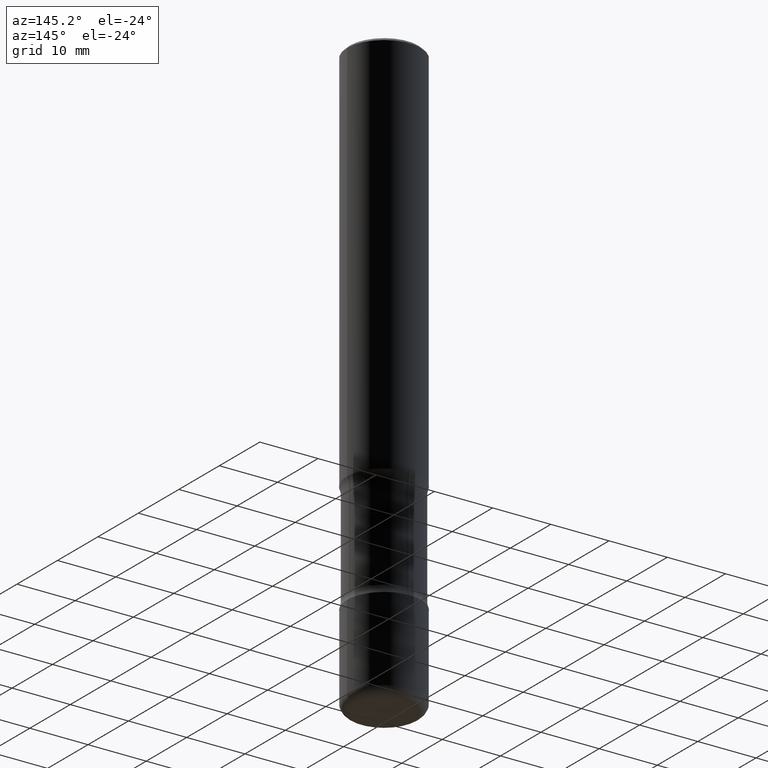
[diagram: clean part render]
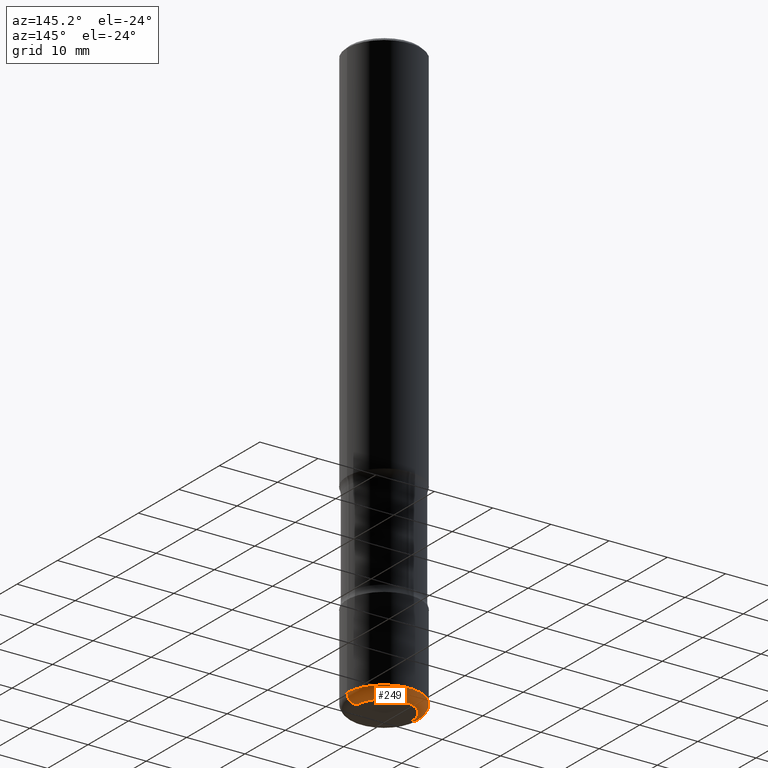
[diagram: same view with one face highlighted and labeled with its STEP entity id]
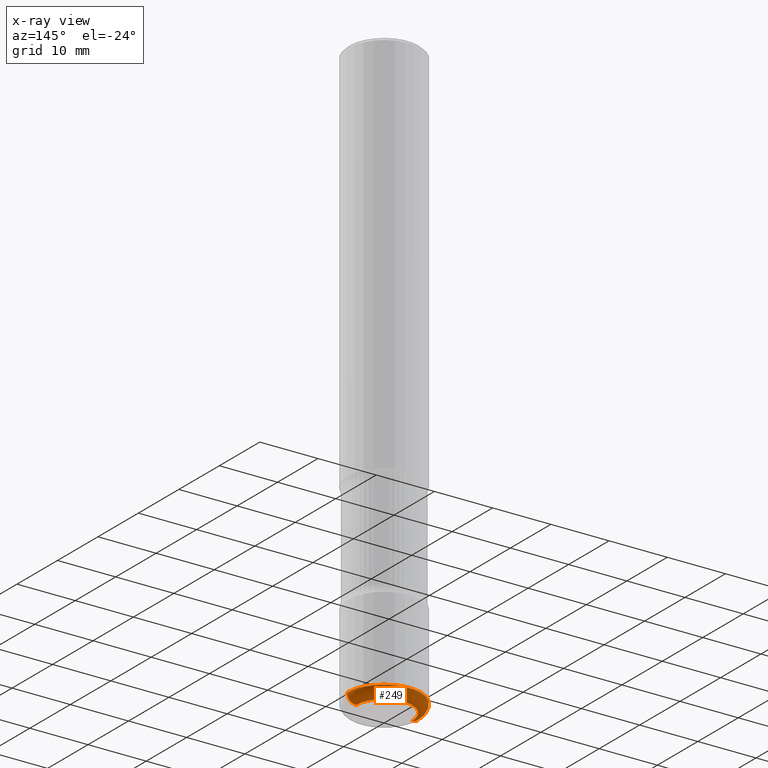
[diagram: x-ray of the same camera — body ghosted, the highlighted face saturated]
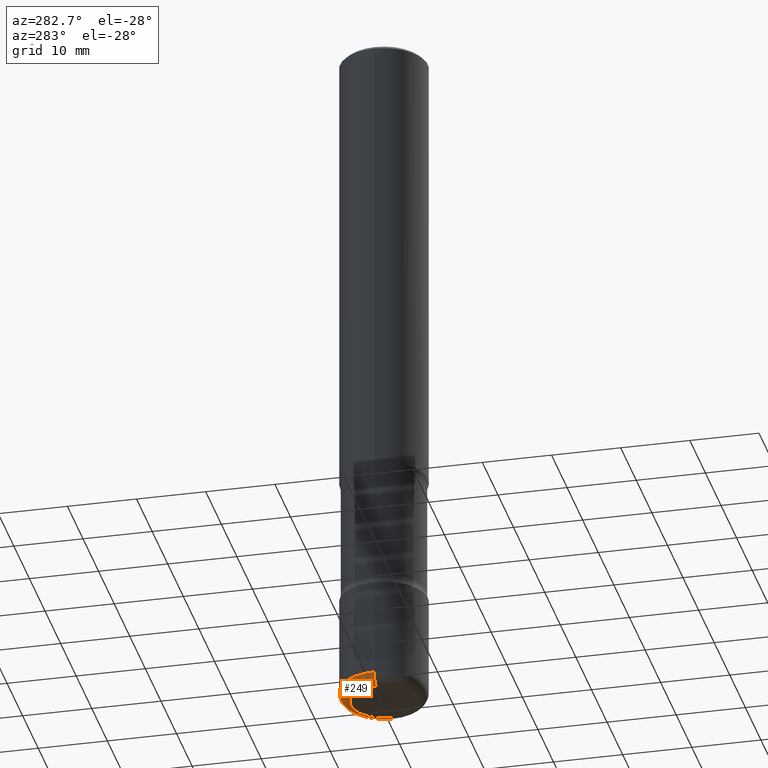
[diagram: same view with one face highlighted and labeled with its STEP entity id]
A machine part, auxiliary view. The second image highlights one B-rep face of the part: STEP entity #249.
The next image is the same camera in x-ray: the body ghosted, the highlighted face saturated — about 0% of this face is hidden behind the body in this view.
A second angle (auxiliary view) of the same face is appended — the face is thin or edge-on in the first view.
In plain terms, the highlighted toroidal blend (fillet) surface has major radius 4.826 mm and minor (blend) radius 1.524 mm.
Its self-contained STEP definition (entity closure, byte-faithful):
#32 = CARTESIAN_POINT ( 'NONE',  ( -0.1899999999999999745, -1.240640527709780404E-14, -3.939999999999999947 ) ) ;
#75 = AXIS2_PLACEMENT_3D ( 'NONE', #32, #368, #794 ) ;
#93 = DIRECTION ( 'NONE',  ( -2.445468806185136597E-29, 3.491481338843145583E-15, 1.000000000000000000 ) ) ;
#99 = VERTEX_POINT ( 'NONE', #479 ) ;
#113 = VERTEX_POINT ( 'NONE', #227 ) ;
#140 = ORIENTED_EDGE ( 'NONE', *, *, #389, .T. ) ;
#157 = VERTEX_POINT ( 'NONE', #492 ) ;
#167 = EDGE_CURVE ( 'NONE', #157, #99, #322, .T. ) ;
#184 = CARTESIAN_POINT ( 'NONE',  ( 9.635147096369438236E-29, -1.375643647504199401E-14, -3.939999999999999947 ) ) ;
#189 = VERTEX_POINT ( 'NONE', #299 ) ;
#227 = CARTESIAN_POINT ( 'NONE',  ( 0.1899999999999999745, -1.529268826413297395E-14, -4.000000000000000888 ) ) ;
#244 = EDGE_CURVE ( 'NONE', #189, #99, #251, .T. ) ;
#249 = ADVANCED_FACE ( 'NONE', ( #688 ), #305, .T. ) ;
#251 = CIRCLE ( 'NONE', #655, 0.2499999999999999722 ) ;
#255 = DIRECTION ( 'NONE',  ( -6.982962677686266711E-15, -1.000000000000000000, 3.491481338843145583E-15 ) ) ;
#278 = CIRCLE ( 'NONE', #337, 0.1899999999999999745 ) ;
#282 = EDGE_LOOP ( 'NONE', ( #140, #590, #398, #650 ) ) ;
#299 = CARTESIAN_POINT ( 'NONE',  ( 0.2500000000000000555, -1.550217714446356069E-14, -3.939999999999999947 ) ) ;
#305 = TOROIDAL_SURFACE ( 'NONE', #490, 0.1899999999999999745, 0.06000000000000021289 ) ;
#321 = CARTESIAN_POINT ( 'NONE',  ( 0.1899999999999999745, -1.508319938380238721E-14, -3.939999999999999947 ) ) ;
#322 = CIRCLE ( 'NONE', #75, 0.06000000000000021289 ) ;
#337 = AXIS2_PLACEMENT_3D ( 'NONE', #753, #455, #589 ) ;
#359 = EDGE_CURVE ( 'NONE', #113, #189, #745, .T. ) ;
#368 = DIRECTION ( 'NONE',  ( 7.105427357601001859E-15, 1.000000000000000000, -3.491481338843145583E-15 ) ) ;
#389 = EDGE_CURVE ( 'NONE', #113, #157, #278, .T. ) ;
#396 = DIRECTION ( 'NONE',  ( -2.445468806185136597E-29, 3.491481338843145583E-15, 1.000000000000000000 ) ) ;
#398 = ORIENTED_EDGE ( 'NONE', *, *, #244, .F. ) ;
#437 = CARTESIAN_POINT ( 'NONE',  ( 9.635147096369438236E-29, -1.375643647504199401E-14, -3.939999999999999947 ) ) ;
#455 = DIRECTION ( 'NONE',  ( -2.445468806185136597E-29, 3.491481338843145583E-15, 1.000000000000000000 ) ) ;
#479 = CARTESIAN_POINT ( 'NONE',  ( -0.2500000000000000555, -1.198007963564174355E-14, -3.939999999999999947 ) ) ;
#490 = AXIS2_PLACEMENT_3D ( 'NONE', #184, #396, #806 ) ;
#492 = CARTESIAN_POINT ( 'NONE',  ( -0.1899999999999999745, -1.229798689653506874E-14, -4.000000000000000888 ) ) ;
#514 = AXIS2_PLACEMENT_3D ( 'NONE', #321, #255, #576 ) ;
#534 = DIRECTION ( 'NONE',  ( 1.000000000000000000, -6.982962677686263555E-15, 0.000000000000000000 ) ) ;
#576 = DIRECTION ( 'NONE',  ( 1.000000000000000000, -6.982962677686275388E-15, 0.000000000000000000 ) ) ;
#589 = DIRECTION ( 'NONE',  ( 1.000000000000000000, -6.982962677686261977E-15, 0.000000000000000000 ) ) ;
#590 = ORIENTED_EDGE ( 'NONE', *, *, #167, .T. ) ;
#650 = ORIENTED_EDGE ( 'NONE', *, *, #359, .F. ) ;
#655 = AXIS2_PLACEMENT_3D ( 'NONE', #437, #93, #534 ) ;
#688 = FACE_OUTER_BOUND ( 'NONE', #282, .T. ) ;
#745 = CIRCLE ( 'NONE', #514, 0.06000000000000021289 ) ;
#753 = CARTESIAN_POINT ( 'NONE',  ( 9.781875224740547508E-29, -1.396592535537258391E-14, -4.000000000000000888 ) ) ;
#794 = DIRECTION ( 'NONE',  ( -1.000000000000000000, 7.105427357600997914E-15, 0.000000000000000000 ) ) ;
#806 = DIRECTION ( 'NONE',  ( 1.000000000000000000, -6.982962677686265133E-15, 4.883557194083111780E-29 ) ) ;